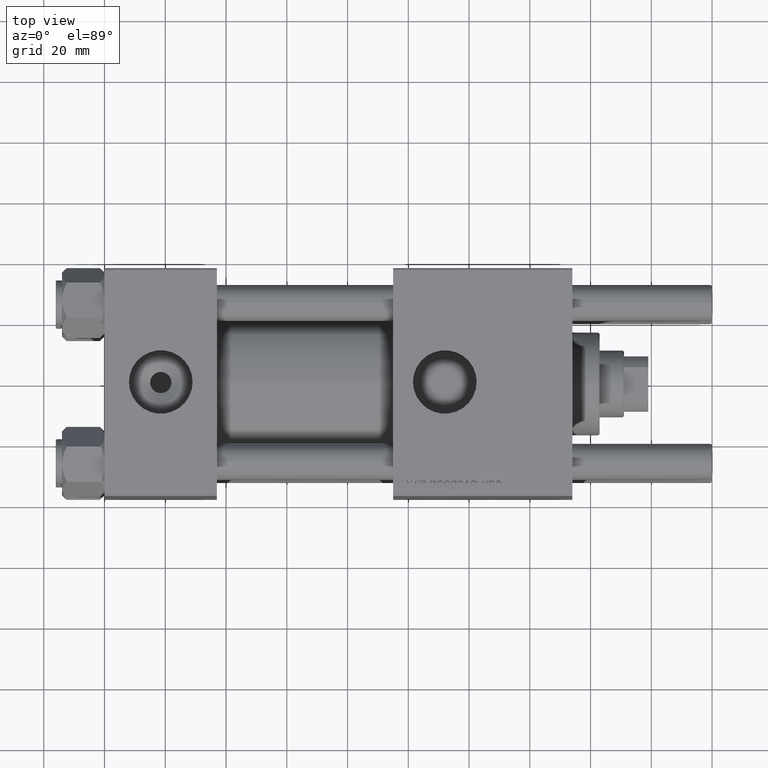
[diagram: clean part render]
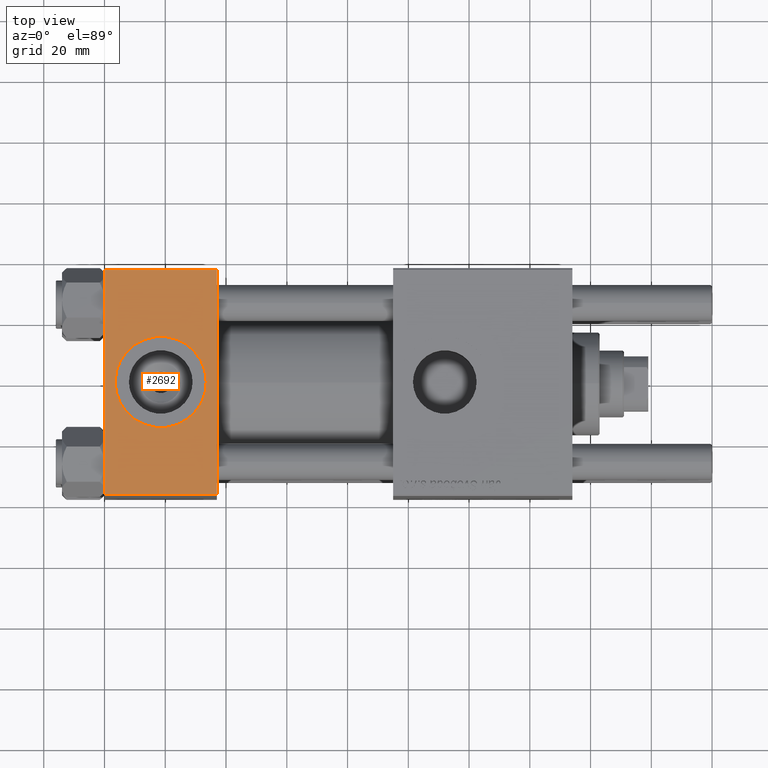
[diagram: same view with one face highlighted and labeled with its STEP entity id]
A machine part, top view. The second image highlights one B-rep face of the part: STEP entity #2692.
In plain terms, the highlighted planar face has unit normal (0, 0, -1).
Its self-contained STEP definition (entity closure, byte-faithful):
#1521 = DIRECTION ( 'NONE',  ( 0.000000000000000000, -1.000000000000000000, -9.251858538542971581E-17 ) ) ;
#2116 = VERTEX_POINT ( 'NONE', #18873 ) ;
#2692 = ADVANCED_FACE ( 'NONE', ( #11599, #42270 ), #55469, .F. ) ;
#2709 = EDGE_CURVE ( 'NONE', #49106, #25979, #6740, .T. ) ;
#4730 = CARTESIAN_POINT ( 'NONE',  ( 0.000000000000000000, 36.99999999999999289, 37.50000000000000000 ) ) ;
#5319 = ORIENTED_EDGE ( 'NONE', *, *, #49428, .F. ) ;
#5590 = VECTOR ( 'NONE', #21320, 1000.000000000000000 ) ;
#5832 = CARTESIAN_POINT ( 'NONE',  ( 37.00000000000000000, -37.00000000000000711, 37.49999999999999289 ) ) ;
#6634 = CARTESIAN_POINT ( 'NONE',  ( 37.00000000000000000, -37.00000000000000711, 37.49999999999999289 ) ) ;
#6740 = LINE ( 'NONE', #24218, #5590 ) ;
#7978 = VECTOR ( 'NONE', #37850, 1000.000000000000000 ) ;
#9111 = EDGE_CURVE ( 'NONE', #2116, #21612, #33099, .T. ) ;
#9291 = AXIS2_PLACEMENT_3D ( 'NONE', #20353, #20063, #32973 ) ;
#10676 = CIRCLE ( 'NONE', #14327, 15.00000000000000355 ) ;
#11599 = FACE_BOUND ( 'NONE', #33819, .T. ) ;
#14327 = AXIS2_PLACEMENT_3D ( 'NONE', #29963, #26490, #52598 ) ;
#18696 = LINE ( 'NONE', #35903, #35481 ) ;
#18873 = CARTESIAN_POINT ( 'NONE',  ( 33.50000000000000000, -5.204170427930421283E-15, 37.50000000000000000 ) ) ;
#19809 = ORIENTED_EDGE ( 'NONE', *, *, #46847, .T. ) ;
#20063 = DIRECTION ( 'NONE',  ( 0.000000000000000000, 0.000000000000000000, 1.000000000000000000 ) ) ;
#20353 = CARTESIAN_POINT ( 'NONE',  ( 18.50000000000000000, -5.204170427930421283E-15, 37.50000000000000000 ) ) ;
#21320 = DIRECTION ( 'NONE',  ( 0.000000000000000000, -1.000000000000000000, -9.251858538542971581E-17 ) ) ;
#21612 = VERTEX_POINT ( 'NONE', #50792 ) ;
#24218 = CARTESIAN_POINT ( 'NONE',  ( 0.000000000000000000, 37.49999999999999289, 37.50000000000000000 ) ) ;
#24538 = VECTOR ( 'NONE', #51727, 1000.000000000000000 ) ;
#25831 = ORIENTED_EDGE ( 'NONE', *, *, #45578, .F. ) ;
#25979 = VERTEX_POINT ( 'NONE', #51246 ) ;
#26490 = DIRECTION ( 'NONE',  ( 0.000000000000000000, 0.000000000000000000, 1.000000000000000000 ) ) ;
#28141 = LINE ( 'NONE', #6634, #7978 ) ;
#29164 = EDGE_LOOP ( 'NONE', ( #44112, #19809, #5319, #35952 ) ) ;
#29362 = CARTESIAN_POINT ( 'NONE',  ( 37.00000000000000000, 37.49999999999999289, 37.50000000000000000 ) ) ;
#29963 = CARTESIAN_POINT ( 'NONE',  ( 18.50000000000000000, -5.204170427930421283E-15, 37.50000000000000000 ) ) ;
#32973 = DIRECTION ( 'NONE',  ( 1.000000000000000000, 0.000000000000000000, 0.000000000000000000 ) ) ;
#33099 = CIRCLE ( 'NONE', #9291, 15.00000000000000355 ) ;
#33819 = EDGE_LOOP ( 'NONE', ( #46946, #25831 ) ) ;
#35481 = VECTOR ( 'NONE', #1521, 1000.000000000000000 ) ;
#35903 = CARTESIAN_POINT ( 'NONE',  ( 37.00000000000000000, 37.49999999999999289, 37.50000000000000000 ) ) ;
#35952 = ORIENTED_EDGE ( 'NONE', *, *, #52514, .T. ) ;
#36087 = VERTEX_POINT ( 'NONE', #5832 ) ;
#37850 = DIRECTION ( 'NONE',  ( 1.000000000000000000, 0.000000000000000000, 0.000000000000000000 ) ) ;
#39373 = VERTEX_POINT ( 'NONE', #40171 ) ;
#40171 = CARTESIAN_POINT ( 'NONE',  ( 37.00000000000000000, 36.99999999999999289, 37.50000000000000000 ) ) ;
#42270 = FACE_OUTER_BOUND ( 'NONE', #29164, .T. ) ;
#44112 = ORIENTED_EDGE ( 'NONE', *, *, #2709, .T. ) ;
#45578 = EDGE_CURVE ( 'NONE', #21612, #2116, #10676, .T. ) ;
#46023 = DIRECTION ( 'NONE',  ( 0.000000000000000000, 1.000000000000000000, 9.251858538542971581E-17 ) ) ;
#46847 = EDGE_CURVE ( 'NONE', #25979, #36087, #28141, .T. ) ;
#46864 = DIRECTION ( 'NONE',  ( 0.000000000000000000, 9.251858538542971581E-17, -1.000000000000000000 ) ) ;
#46946 = ORIENTED_EDGE ( 'NONE', *, *, #9111, .F. ) ;
#47435 = CARTESIAN_POINT ( 'NONE',  ( 0.000000000000000000, 36.99999999999999289, 37.50000000000000000 ) ) ;
#49106 = VERTEX_POINT ( 'NONE', #4730 ) ;
#49428 = EDGE_CURVE ( 'NONE', #39373, #36087, #18696, .T. ) ;
#50792 = CARTESIAN_POINT ( 'NONE',  ( 3.499999999999997780, -3.367200229209391300E-15, 37.50000000000000000 ) ) ;
#51246 = CARTESIAN_POINT ( 'NONE',  ( 0.000000000000000000, -37.00000000000000711, 37.49999999999999289 ) ) ;
#51328 = AXIS2_PLACEMENT_3D ( 'NONE', #29362, #46864, #46023 ) ;
#51727 = DIRECTION ( 'NONE',  ( -1.000000000000000000, 0.000000000000000000, 0.000000000000000000 ) ) ;
#52007 = LINE ( 'NONE', #47435, #24538 ) ;
#52514 = EDGE_CURVE ( 'NONE', #39373, #49106, #52007, .T. ) ;
#52598 = DIRECTION ( 'NONE',  ( 1.000000000000000000, 0.000000000000000000, 0.000000000000000000 ) ) ;
#55469 = PLANE ( 'NONE',  #51328 ) ;